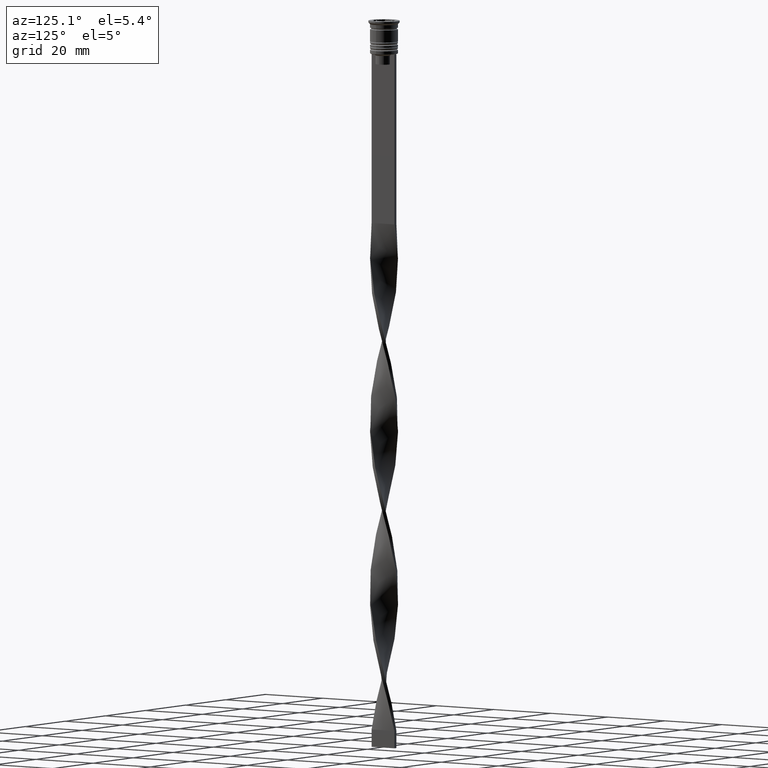
[diagram: clean part render]
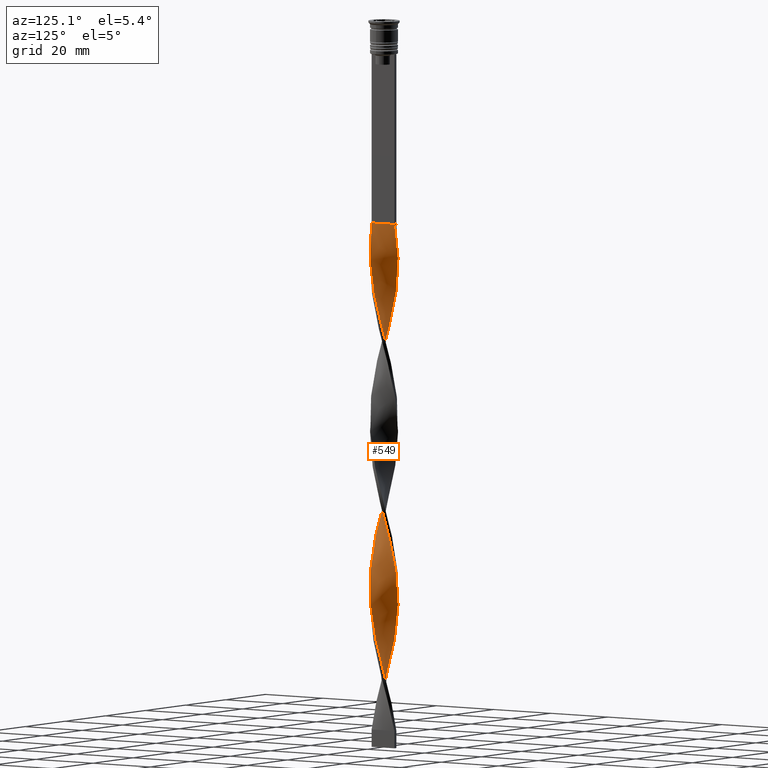
[diagram: same view with one face highlighted and labeled with its STEP entity id]
A machine part, auxiliary view. The second image highlights one B-rep face of the part: STEP entity #549.
In plain terms, the highlighted face is a freeform B-spline surface patch.
Its self-contained STEP definition (entity closure, byte-faithful):
#7 = CARTESIAN_POINT ( 'NONE',  ( -2.821583537095226468, 2.903135856687523830, -117.1862745098039369 ) ) ;
#14 = CARTESIAN_POINT ( 'NONE',  ( -3.856468655234277065, -1.231739002543614125, -134.3627450980391984 ) ) ;
#30 = CARTESIAN_POINT ( 'NONE',  ( -4.029070884911789996, -0.1287936502943096417, -130.0686274509803866 ) ) ;
#35 = CARTESIAN_POINT ( 'NONE',  ( -1.680620083644616125, 3.664084624357134778, -67.08823529411763786 ) ) ;
#48 = CARTESIAN_POINT ( 'NONE',  ( 3.927262761293754956, -0.9829235285346253903, -174.4411764705882320 ) ) ;
#62 = CARTESIAN_POINT ( 'NONE',  ( 0.8706545849681190941, -3.953668176878984752, -157.2647058823529278 ) ) ;
#84 = CARTESIAN_POINT ( 'NONE',  ( 4.041005374160881125, 0.2445547488692193516, -134.3627450980391984 ) ) ;
#87 = CARTESIAN_POINT ( 'NONE',  ( 2.020147525076906536, 3.508352239459040067, -194.4803921568627914 ) ) ;
#104 = CARTESIAN_POINT ( 'NONE',  ( -1.582314657248345968, -3.726367102775659301, -102.8725490196078312 ) ) ;
#111 = CARTESIAN_POINT ( 'NONE',  ( -1.911202779450789535, -3.549268084523846678, -101.4411764705882320 ) ) ;
#127 = CARTESIAN_POINT ( 'NONE',  ( 3.803522343308518572, 1.335371777428622897, -138.6568627450980387 ) ) ;
#128 =( BOUNDED_CURVE ( )  B_SPLINE_CURVE ( 2, ( #2947, #3836, #1049, #789, #3466, #3811, #3531, #191, #2967, #2559, #3776, #1692, #2027, #1735, #745, #450, #1960, #2275, #2321, #1085, #1669, #2005, #1408, #3177, #2882, #1371, #169, #3485, #3857, #2901, #216, #763, #1436, #1387, #2619, #2640, #1755, #2302, #3512, #3217, #496, #2341, #3550, #826, #1712, #2047, #2923, #3262, #543, #1147, #278, #1496, #2683, #14, #3896, #1213, #1470, #3633, #2704, #1820, #3914, #3283, #635, #3009, #2068, #1176, #2388, #2363, #3932, #1193, #3044, #2662, #1836, #3595, #2425, #870, #930, #579, #912, #1240, #2129, #1774, #312, #3339, #561, #1793, #1534, #3576, #2407, #295, #620, #3613, #2987, #1850, #887, #253, #2087, #3301, #851, #2737, #2106, #2451, #3321 ),
 .UNSPECIFIED., .F., .T. ) 
 B_SPLINE_CURVE_WITH_KNOTS ( ( 3, 2, 2, 2, 2, 2, 2, 2, 2, 2, 2, 2, 2, 2, 2, 2, 2, 2, 2, 2, 2, 2, 2, 2, 2, 2, 2, 2, 2, 2, 2, 2, 2, 2, 2, 2, 2, 2, 2, 2, 2, 2, 2, 2, 2, 2, 2, 2, 2, 2, 2, 3 ),
 ( 0.000000000000000000, 0.01470588235294117453, 0.02941176470588234906, 0.04411764705882353227, 0.05882352941176469813, 0.07352941176470588480, 0.08823529411764706454, 0.1029411764705882443, 0.1176470588235293963, 0.1323529411764705899, 0.1470588235294117696, 0.1617647058823529493, 0.1764705882352941291, 0.1911764705882352811, 0.2058823529411764885, 0.2205882352941176405, 0.2352941176470587925, 0.2500000000000000000, 0.2647058823529411797, 0.2794117647058823595, 0.2941176470588235392, 0.3088235294117647189, 0.3235294117647058987, 0.3382352941176470229, 0.3529411764705882582, 0.3676470588235294379, 0.3823529411764705621, 0.3970588235294117418, 0.4117647058823529771, 0.4264705882352941013, 0.4411764705882352811, 0.4558823529411764608, 0.4705882352941175850, 0.4852941176470588203, 0.5000000000000000000, 0.5147058823529411242, 0.5294117647058823595, 0.5441176470588234837, 0.5588235294117647189, 0.5735294117647058432, 0.5882352941176470784, 0.6029411764705882026, 0.6176470588235294379, 0.6323529411764705621, 0.6470588235294117974, 0.6617647058823529216, 0.6764705882352940458, 0.6911764705882351700, 0.7058823529411765163, 0.7205882352941176405, 0.7352941176470588758, 0.7500000000000000000 ),
 .UNSPECIFIED. ) 
 CURVE ( )  GEOMETRIC_REPRESENTATION_ITEM ( )  RATIONAL_B_SPLINE_CURVE ( ( 1.000000000000000000, 0.9957341762950344677, 1.000000000000000000, 0.9957341762950344677, 1.000000000000000000, 0.9957341762950344677, 1.000000000000000000, 0.9957341762950344677, 1.000000000000000000, 0.9957341762950344677, 1.000000000000000000, 0.9957341762950344677, 1.000000000000000000, 0.9957341762950344677, 1.000000000000000000, 0.9957341762950344677, 1.000000000000000000, 0.9957341762950344677, 1.000000000000000000, 0.9957341762950344677, 1.000000000000000000, 0.9957341762950344677, 1.000000000000000000, 0.9957341762950344677, 1.000000000000000000, 0.9957341762950344677, 1.000000000000000000, 0.9957341762950344677, 1.000000000000000000, 0.9957341762950344677, 1.000000000000000000, 0.9957341762950344677, 1.000000000000000000, 0.9957341762950344677, 1.000000000000000000, 0.9957341762950344677, 1.000000000000000000, 0.9957341762950344677, 1.000000000000000000, 0.9957341762950344677, 1.000000000000000000, 0.9957341762950344677, 1.000000000000000000, 0.9957341762950344677, 1.000000000000000000, 0.9957341762950344677, 1.000000000000000000, 0.9957341762950344677, 1.000000000000000000, 0.9957341762950344677, 1.000000000000000000, 0.9957341762950344677, 1.000000000000000000, 0.9957341762950344677, 1.000000000000000000, 0.9957341762950344677, 1.000000000000000000, 0.9957341762950344677, 1.000000000000000000, 0.9957341762950344677, 1.000000000000000000, 0.9957341762950344677, 1.000000000000000000, 0.9957341762950344677, 1.000000000000000000, 0.9957341762950344677, 1.000000000000000000, 0.9957341762950344677, 1.000000000000000000, 0.9957341762950344677, 1.000000000000000000, 0.9957341762950344677, 1.000000000000000000, 0.9957341762950344677, 1.000000000000000000, 0.9957341762950344677, 1.000000000000000000, 0.9957341762950344677, 1.000000000000000000, 0.9957341762950344677, 1.000000000000000000, 0.9957341762950344677, 1.000000000000000000, 0.9957341762950344677, 1.000000000000000000, 0.9957341762950344677, 1.000000000000000000, 0.9957341762950344677, 1.000000000000000000, 0.9957341762950344677, 1.000000000000000000, 0.9957341762950344677, 1.000000000000000000, 0.9957341762950344677, 1.000000000000000000, 0.9957341762950344677, 1.000000000000000000, 0.9957341762950344677, 1.000000000000000000, 0.9957341762950344677, 1.000000000000000000, 0.9957341762950344677, 1.000000000000000000 ) ) 
 REPRESENTATION_ITEM ( '' )  );
#132 = ORIENTED_EDGE ( 'NONE', *, *, #907, .T. ) ;
#142 = CARTESIAN_POINT ( 'NONE',  ( -1.341092642212326380, 3.819817009255230822, -65.65686274509803866 ) ) ;
#148 = ORIENTED_EDGE ( 'NONE', *, *, #322, .F. ) ;
#150 = CARTESIAN_POINT ( 'NONE',  ( 0.5000000000000000000, 4.000000000000000000, -155.8333333333333144 ) ) ;
#159 = CARTESIAN_POINT ( 'NONE',  ( -0.2435115214243304405, 4.023767157643892034, -61.36274509803921262 ) ) ;
#164 = CARTESIAN_POINT ( 'NONE',  ( 3.493386227310586900, 2.011529931876904875, -141.5196078431372371 ) ) ;
#169 = CARTESIAN_POINT ( 'NONE',  ( 2.325278115975899951, 3.292883490705914795, -95.71568627450979250 ) ) ;
#179 = CARTESIAN_POINT ( 'NONE',  ( -3.306990529297890724, -2.335239837431193788, -191.6176470588235077 ) ) ;
#186 = CARTESIAN_POINT ( 'NONE',  ( 0.1293454150318809337, 4.046331823121015248, -157.2647058823529278 ) ) ;
#191 = CARTESIAN_POINT ( 'NONE',  ( 2.821583537095227356, -2.903135856687522942, -68.51960784313725128 ) ) ;
#199 = CARTESIAN_POINT ( 'NONE',  ( -3.936802525448486634, 0.8669405260007252423, -178.7352941176470438 ) ) ;
#212 = CARTESIAN_POINT ( 'NONE',  ( 0.6163684578805426195, 4.001202492166771485, -102.8725490196078312 ) ) ;
#216 = CARTESIAN_POINT ( 'NONE',  ( 0.9787305500464337227, 3.910509750710999821, -101.4411764705882320 ) ) ;
#226 = CARTESIAN_POINT ( 'NONE',  ( 1.911202779450789979, 3.549268084523846678, -150.1078431372548891 ) ) ;
#232 = CARTESIAN_POINT ( 'NONE',  ( 3.936802525448487522, 0.8669405260007247982, -84.26470588235294201 ) ) ;
#240 = CARTESIAN_POINT ( 'NONE',  ( -3.564473500076193790, 1.919390561205869261, -174.4411764705882320 ) ) ;
#248 = CARTESIAN_POINT ( 'NONE',  ( 3.803522343308519016, -1.335371777428622009, -75.67647058823528994 ) ) ;
#253 = CARTESIAN_POINT ( 'NONE',  ( 2.020147525076906980, 3.508352239459040067, -194.4803921568627629 ) ) ;
#267 = CARTESIAN_POINT ( 'NONE',  ( 3.564473500076194235, 1.919390561205868817, -88.55882352941175384 ) ) ;
#278 = CARTESIAN_POINT ( 'NONE',  ( -4.029070884911789996, -0.1287936502943096417, -130.0686274509803866 ) ) ;
#290 = CARTESIAN_POINT ( 'NONE',  ( -0.4999999999999994449, 4.000000000000000000, -107.1666666666666572 ) ) ;
#295 = CARTESIAN_POINT ( 'NONE',  ( 3.564473500076193790, 1.919390561205868817, -185.8921568627451109 ) ) ;
#308 = CARTESIAN_POINT ( 'NONE',  ( 1.582314657248345080, -3.726367102775659745, -160.1274509803922115 ) ) ;
#312 = CARTESIAN_POINT ( 'NONE',  ( 3.984134067727318040, -0.6137391387019215383, -175.8725490196078454 ) ) ;
#322 = EDGE_CURVE ( 'NONE', #595, #3793, #2969, .T. ) ;
#327 = CARTESIAN_POINT ( 'NONE',  ( 2.630408706874893365, 3.077414741952792188, -191.6176470588235077 ) ) ;
#329 = VECTOR ( 'NONE', #2429, 1000.000000000000000 ) ;
#352 = CARTESIAN_POINT ( 'NONE',  ( 4.017136395662697979, 0.5021420494578370253, -180.1666666666666288 ) ) ;
#366 = CARTESIAN_POINT ( 'NONE',  ( -0.6163684578805430636, -4.001202492166771485, -151.5392156862744741 ) ) ;
#369 = CARTESIAN_POINT ( 'NONE',  ( -1.341092642212326380, 3.819817009255230822, -65.65686274509803866 ) ) ;
#380 = CARTESIAN_POINT ( 'NONE',  ( -3.856468655234276621, -1.231739002543614125, -134.3627450980391984 ) ) ;
#403 = CARTESIAN_POINT ( 'NONE',  ( -2.325278115975899507, 3.292883490705915239, -69.95098039215686470 ) ) ;
#406 = CARTESIAN_POINT ( 'NONE',  ( 0.5000000000000000000, -4.000000000000000000, -58.50000000000000000 ) ) ;
#410 = CARTESIAN_POINT ( 'NONE',  ( -3.856468655234276621, 1.231739002543613237, -79.97058823529411598 ) ) ;
#422 = CARTESIAN_POINT ( 'NONE',  ( 0.9787305500464342778, -3.910509750710998933, -112.8921568627450966 ) ) ;
#428 = CARTESIAN_POINT ( 'NONE',  ( 2.020147525076905648, -3.508352239459040067, -117.1862745098039369 ) ) ;
#437 = CARTESIAN_POINT ( 'NONE',  ( 3.357783987531981040, -2.230535068783683350, -124.3431372549019471 ) ) ;
#445 = CARTESIAN_POINT ( 'NONE',  ( -2.325278115975899507, 3.292883490705915239, -167.2843137254901933 ) ) ;
#450 = CARTESIAN_POINT ( 'NONE',  ( 4.041005374160881125, -0.2445547488692184912, -79.97058823529411598 ) ) ;
#461 = CARTESIAN_POINT ( 'NONE',  ( -3.064287033196559040, -2.619187847059357477, -95.71568627450979250 ) ) ;
#471 = CARTESIAN_POINT ( 'NONE',  ( -3.984134067727318040, -0.6137391387019219824, -87.12745098039215463 ) ) ;
#489 = CARTESIAN_POINT ( 'NONE',  ( -0.5000000000000005551, -4.000000000000000000, -107.1666666666666572 ) ) ;
#496 = CARTESIAN_POINT ( 'NONE',  ( -2.530837219374230784, 3.137652461479778498, -115.7549019607843093 ) ) ;
#501 = CARTESIAN_POINT ( 'NONE',  ( 1.582314657248346412, 3.726367102775658413, -151.5392156862744741 ) ) ;
#510 = CARTESIAN_POINT ( 'NONE',  ( -3.936802525448486634, 0.8669405260007252423, -81.40196078431371518 ) ) ;
#528 = CARTESIAN_POINT ( 'NONE',  ( -3.064287033196559040, -2.619187847059357477, -193.0490196078431211 ) ) ;
#539 = CARTESIAN_POINT ( 'NONE',  ( -3.679781925323283076, -1.687820026322619738, -188.7549019607843093 ) ) ;
#543 = CARTESIAN_POINT ( 'NONE',  ( -3.984134067727318040, 0.6137391387019228706, -127.2058823529411740 ) ) ;
#549 = ADVANCED_FACE ( 'NONE', ( #1311 ), #923, .T. ) ;
#551 = CARTESIAN_POINT ( 'NONE',  ( -3.151094474987766958, 2.541679576361500104, -171.5784313725490620 ) ) ;
#558 = CARTESIAN_POINT ( 'NONE',  ( -1.226484621108232531, -3.840017639827321805, -201.6372549019607732 ) ) ;
#561 = CARTESIAN_POINT ( 'NONE',  ( 4.029070884911789108, 0.1287936502943091699, -178.7352941176470438 ) ) ;
#567 = CARTESIAN_POINT ( 'NONE',  ( 0.8706545849681190941, 3.953668176878986085, -154.4019607843137294 ) ) ;
#576 = CARTESIAN_POINT ( 'NONE',  ( -3.803522343308519016, -1.335371777428621565, -187.3235294117646959 ) ) ;
#579 = CARTESIAN_POINT ( 'NONE',  ( 3.306990529297890724, -2.335239837431193788, -168.7156862745097783 ) ) ;
#585 = CARTESIAN_POINT ( 'NONE',  ( -2.530837219374230340, -3.137652461479778943, -195.9117647058823479 ) ) ;
#593 = CARTESIAN_POINT ( 'NONE',  ( 2.325278115975899951, 3.292883490705914795, -95.71568627450979250 ) ) ;
#595 = VERTEX_POINT ( 'NONE', #406 ) ;
#597 = ORIENTED_EDGE ( 'NONE', *, *, #1550, .F. ) ;
#613 = CARTESIAN_POINT ( 'NONE',  ( -3.936802525448486634, 0.8669405260007252423, -178.7352941176470438 ) ) ;
#618 = B_SPLINE_CURVE_WITH_KNOTS ( 'NONE', 3,
 ( #3400, #3662, #954, #1522 ),
 .UNSPECIFIED., .F., .F.,
 ( 4, 4 ),
 ( 0.000000000000000000, 1.000000000000000000 ),
 .UNSPECIFIED. ) ;
#620 = CARTESIAN_POINT ( 'NONE',  ( 3.357783987531980152, 2.230535068783684238, -187.3235294117646959 ) ) ;
#632 = CARTESIAN_POINT ( 'NONE',  ( -2.890751590931330828, -2.809547159157144591, -141.5196078431372371 ) ) ;
#635 = CARTESIAN_POINT ( 'NONE',  ( -1.680620083644617901, -3.664084624357133446, -147.2450980392156907 ) ) ;
#650 = CARTESIAN_POINT ( 'NONE',  ( 0.2435115214243305515, 4.023767157643892034, -201.6372549019607732 ) ) ;
#674 = CARTESIAN_POINT ( 'NONE',  ( 3.710471077655235206, 1.575564781874741138, -184.4607843137254690 ) ) ;
#687 = CARTESIAN_POINT ( 'NONE',  ( 0.5000000000000000000, -4.000000000000000000, -155.8333333333333144 ) ) ;
#692 = CARTESIAN_POINT ( 'NONE',  ( 0.1293454150318809337, 4.046331823121015248, -59.93137254901961342 ) ) ;
#698 = CARTESIAN_POINT ( 'NONE',  ( -3.710471077655235206, 1.575564781874740694, -78.53921568627450256 ) ) ;
#727 = CARTESIAN_POINT ( 'NONE',  ( 2.325278115975899507, -3.292883490705915239, -118.6176470588235219 ) ) ;
#737 = CARTESIAN_POINT ( 'NONE',  ( 1.341092642212325936, -3.819817009255230822, -114.3235294117646959 ) ) ;
#742 = CARTESIAN_POINT ( 'NONE',  ( -1.226484621108232531, -3.840017639827321805, -104.3039215686274446 ) ) ;
#745 = CARTESIAN_POINT ( 'NONE',  ( 3.984134067727318040, -0.6137391387019215383, -78.53921568627450256 ) ) ;
#752 = CARTESIAN_POINT ( 'NONE',  ( -0.8706545849681186500, -3.953668176878986085, -105.7352941176470722 ) ) ;
#758 = CARTESIAN_POINT ( 'NONE',  ( 3.936802525448487522, -0.8669405260007250202, -130.0686274509803866 ) ) ;
#763 = CARTESIAN_POINT ( 'NONE',  ( 0.6163684578805426195, 4.001202492166770597, -102.8725490196078312 ) ) ;
#774 = CARTESIAN_POINT ( 'NONE',  ( 3.936802525448487522, -0.8669405260007250202, -130.0686274509803866 ) ) ;
#785 = CARTESIAN_POINT ( 'NONE',  ( 2.240090901653234656, 3.372169066272035831, -148.6764705882353326 ) ) ;
#789 = CARTESIAN_POINT ( 'NONE',  ( 1.582314657248345080, -3.726367102775659301, -62.79411764705881893 ) ) ;
#803 = CARTESIAN_POINT ( 'NONE',  ( -2.890751590931329940, 2.809547159157145479, -170.1470588235293917 ) ) ;
#813 = CARTESIAN_POINT ( 'NONE',  ( 2.530837219374231672, 3.137652461479777610, -147.2450980392156907 ) ) ;
#821 = CARTESIAN_POINT ( 'NONE',  ( -0.5000000000000005551, -4.000000000000000000, -204.5000000000000000 ) ) ;
#826 = CARTESIAN_POINT ( 'NONE',  ( -3.306990529297891168, 2.335239837431193344, -120.0490196078431353 ) ) ;
#836 = CARTESIAN_POINT ( 'NONE',  ( -2.630408706874892921, 3.077414741952791744, -168.7156862745097783 ) ) ;
#847 = CARTESIAN_POINT ( 'NONE',  ( -2.240090901653234656, 3.372169066272035387, -114.3235294117646959 ) ) ;
#851 = CARTESIAN_POINT ( 'NONE',  ( 0.9787305500464337227, 3.910509750710999821, -198.7745098039215463 ) ) ;
#860 = CARTESIAN_POINT ( 'NONE',  ( -1.680620083644616125, 3.664084624357134778, -164.4215686274509665 ) ) ;
#867 = CARTESIAN_POINT ( 'NONE',  ( 0.8706545849681190941, -3.953668176878984752, -59.93137254901961342 ) ) ;
#870 = CARTESIAN_POINT ( 'NONE',  ( 2.821583537095227356, -2.903135856687522942, -165.8529411764705799 ) ) ;
#875 = CARTESIAN_POINT ( 'NONE',  ( 2.240090901653234212, 3.372169066272035831, -148.6764705882353326 ) ) ;
#883 = CARTESIAN_POINT ( 'NONE',  ( 1.341092642212326824, 3.819817009255229934, -100.0098039215686327 ) ) ;
#887 = CARTESIAN_POINT ( 'NONE',  ( 2.325278115975899951, 3.292883490705914795, -193.0490196078431211 ) ) ;
#904 = CARTESIAN_POINT ( 'NONE',  ( -1.911202779450789535, -3.549268084523846678, -198.7745098039215463 ) ) ;
#907 = EDGE_CURVE ( 'NONE', #595, #1514, #128, .T. ) ;
#912 = CARTESIAN_POINT ( 'NONE',  ( 3.493386227310586012, -2.011529931876905763, -170.1470588235293917 ) ) ;
#923 =( BOUNDED_SURFACE ( )  B_SPLINE_SURFACE ( 1, 2, ( 
 ( #2521, #692, #1257, #2762, #3138, #369, #35, #1292, #1005, #2467, #3114, #3709, #1605, #2219, #1923, #410, #510, #1366, #1976, #3462, #471, #1707, #2590, #3748, #3480, #1021, #2573, #2292, #2895, #1729, #111, #2536, #742, #3508, #489, #2236, #3155, #1326, #1045, #3807, #3790, #428, #727, #1686, #1642, #1060, #3527, #2854, #3174, #3448, #758, #2022, #2271, #1661, #1104, #1939, #127, #1342, #164, #1384, #2879, #3197, #1957, #785, #1081, #2611, #2554, #2319, #150, #186, #2000, #3771, #3214, #2916, #2252, #3833, #445, #1403, #803, #3231, #1189, #3314, #2636, #2040, #613, #3871, #2700, #2675, #3254, #3545, #576, #539, #3889, #2423, #1752, #2064, #2337, #2383, #904, #1170, #558, #3929, #821 ),
 ( #1769, #867, #2355, #3609, #1789, #1509, #3852, #1210, #2982, #3026, #3001, #1124, #248, #1466, #1451, #2716, #2656, #3909, #232, #2402, #3592, #267, #2084, #1143, #3280, #3296, #593, #1491, #3568, #883, #2939, #212, #1815, #2102, #290, #3629, #2125, #2964, #3336, #847, #1432, #7, #2198, #3095, #3351, #1896, #1582, #2733, #982, #2497, #30, #943, #3110, #380, #1231, #2479, #2447, #3390, #632, #3725, #3683, #1530, #2214, #3705, #3040, #366, #1000, #2758, #687, #62, #1848, #308, #3423, #3082, #3056, #2463, #3407, #2141, #1285, #3667, #962, #48, #3649, #1599, #1832, #352, #2180, #1253, #674, #2813, #2790, #926, #1270, #327, #1567, #87, #1883, #1551, #2159, #3367, #650, #2774, #1307 ) ),
 .UNSPECIFIED., .F., .F., .T. ) 
 B_SPLINE_SURFACE_WITH_KNOTS ( ( 2, 2 ),
 ( 3, 2, 2, 2, 2, 2, 2, 2, 2, 2, 2, 2, 2, 2, 2, 2, 2, 2, 2, 2, 2, 2, 2, 2, 2, 2, 2, 2, 2, 2, 2, 2, 2, 2, 2, 2, 2, 2, 2, 2, 2, 2, 2, 2, 2, 2, 2, 2, 2, 2, 2, 3 ),
 ( 0.000000000000000000, 1.000000000000000000 ),
 ( 0.000000000000000000, 0.01470588235294117627, 0.02941176470588235253, 0.04411764705882353227, 0.05882352941176470507, 0.07352941176470588480, 0.08823529411764706454, 0.1029411764705882304, 0.1176470588235294101, 0.1323529411764705899, 0.1470588235294117696, 0.1617647058823529493, 0.1764705882352941291, 0.1911764705882352811, 0.2058823529411764608, 0.2205882352941176405, 0.2352941176470588203, 0.2500000000000000000, 0.2647058823529411797, 0.2794117647058823595, 0.2941176470588235392, 0.3088235294117647189, 0.3235294117647058987, 0.3382352941176470784, 0.3529411764705882582, 0.3676470588235294379, 0.3823529411764705621, 0.3970588235294117418, 0.4117647058823529216, 0.4264705882352941013, 0.4411764705882352811, 0.4558823529411764608, 0.4705882352941176405, 0.4852941176470588203, 0.5000000000000000000, 0.5147058823529411242, 0.5294117647058823595, 0.5441176470588234837, 0.5588235294117647189, 0.5735294117647058432, 0.5882352941176470784, 0.6029411764705882026, 0.6176470588235294379, 0.6323529411764705621, 0.6470588235294117974, 0.6617647058823529216, 0.6764705882352941568, 0.6911764705882352811, 0.7058823529411765163, 0.7205882352941176405, 0.7352941176470588758, 0.7500000000000000000 ),
 .UNSPECIFIED. ) 
 GEOMETRIC_REPRESENTATION_ITEM ( )  RATIONAL_B_SPLINE_SURFACE ( (
 ( 1.000000000000000000, 0.9957341762950344677, 1.000000000000000000, 0.9957341762950344677, 1.000000000000000000, 0.9957341762950344677, 1.000000000000000000, 0.9957341762950344677, 1.000000000000000000, 0.9957341762950344677, 1.000000000000000000, 0.9957341762950344677, 1.000000000000000000, 0.9957341762950344677, 1.000000000000000000, 0.9957341762950344677, 1.000000000000000000, 0.9957341762950344677, 1.000000000000000000, 0.9957341762950344677, 1.000000000000000000, 0.9957341762950344677, 1.000000000000000000, 0.9957341762950344677, 1.000000000000000000, 0.9957341762950344677, 1.000000000000000000, 0.9957341762950344677, 1.000000000000000000, 0.9957341762950344677, 1.000000000000000000, 0.9957341762950344677, 1.000000000000000000, 0.9957341762950344677, 1.000000000000000000, 0.9957341762950344677, 1.000000000000000000, 0.9957341762950344677, 1.000000000000000000, 0.9957341762950344677, 1.000000000000000000, 0.9957341762950344677, 1.000000000000000000, 0.9957341762950344677, 1.000000000000000000, 0.9957341762950344677, 1.000000000000000000, 0.9957341762950344677, 1.000000000000000000, 0.9957341762950344677, 1.000000000000000000, 0.9957341762950344677, 1.000000000000000000, 0.9957341762950344677, 1.000000000000000000, 0.9957341762950344677, 1.000000000000000000, 0.9957341762950344677, 1.000000000000000000, 0.9957341762950344677, 1.000000000000000000, 0.9957341762950344677, 1.000000000000000000, 0.9957341762950344677, 1.000000000000000000, 0.9957341762950344677, 1.000000000000000000, 0.9957341762950344677, 1.000000000000000000, 0.9957341762950344677, 1.000000000000000000, 0.9957341762950344677, 1.000000000000000000, 0.9957341762950344677, 1.000000000000000000, 0.9957341762950344677, 1.000000000000000000, 0.9957341762950344677, 1.000000000000000000, 0.9957341762950344677, 1.000000000000000000, 0.9957341762950344677, 1.000000000000000000, 0.9957341762950344677, 1.000000000000000000, 0.9957341762950344677, 1.000000000000000000, 0.9957341762950344677, 1.000000000000000000, 0.9957341762950344677, 1.000000000000000000, 0.9957341762950344677, 1.000000000000000000, 0.9957341762950344677, 1.000000000000000000, 0.9957341762950344677, 1.000000000000000000, 0.9957341762950344677, 1.000000000000000000, 0.9957341762950344677, 1.000000000000000000, 0.9957341762950344677, 1.000000000000000000),
 ( 1.000000000000000000, 0.9957341762950344677, 1.000000000000000000, 0.9957341762950344677, 1.000000000000000000, 0.9957341762950344677, 1.000000000000000000, 0.9957341762950344677, 1.000000000000000000, 0.9957341762950344677, 1.000000000000000000, 0.9957341762950344677, 1.000000000000000000, 0.9957341762950344677, 1.000000000000000000, 0.9957341762950344677, 1.000000000000000000, 0.9957341762950344677, 1.000000000000000000, 0.9957341762950344677, 1.000000000000000000, 0.9957341762950344677, 1.000000000000000000, 0.9957341762950344677, 1.000000000000000000, 0.9957341762950344677, 1.000000000000000000, 0.9957341762950344677, 1.000000000000000000, 0.9957341762950344677, 1.000000000000000000, 0.9957341762950344677, 1.000000000000000000, 0.9957341762950344677, 1.000000000000000000, 0.9957341762950344677, 1.000000000000000000, 0.9957341762950344677, 1.000000000000000000, 0.9957341762950344677, 1.000000000000000000, 0.9957341762950344677, 1.000000000000000000, 0.9957341762950344677, 1.000000000000000000, 0.9957341762950344677, 1.000000000000000000, 0.9957341762950344677, 1.000000000000000000, 0.9957341762950344677, 1.000000000000000000, 0.9957341762950344677, 1.000000000000000000, 0.9957341762950344677, 1.000000000000000000, 0.9957341762950344677, 1.000000000000000000, 0.9957341762950344677, 1.000000000000000000, 0.9957341762950344677, 1.000000000000000000, 0.9957341762950344677, 1.000000000000000000, 0.9957341762950344677, 1.000000000000000000, 0.9957341762950344677, 1.000000000000000000, 0.9957341762950344677, 1.000000000000000000, 0.9957341762950344677, 1.000000000000000000, 0.9957341762950344677, 1.000000000000000000, 0.9957341762950344677, 1.000000000000000000, 0.9957341762950344677, 1.000000000000000000, 0.9957341762950344677, 1.000000000000000000, 0.9957341762950344677, 1.000000000000000000, 0.9957341762950344677, 1.000000000000000000, 0.9957341762950344677, 1.000000000000000000, 0.9957341762950344677, 1.000000000000000000, 0.9957341762950344677, 1.000000000000000000, 0.9957341762950344677, 1.000000000000000000, 0.9957341762950344677, 1.000000000000000000, 0.9957341762950344677, 1.000000000000000000, 0.9957341762950344677, 1.000000000000000000, 0.9957341762950344677, 1.000000000000000000, 0.9957341762950344677, 1.000000000000000000, 0.9957341762950344677, 1.000000000000000000) ) ) 
 REPRESENTATION_ITEM ( '' )  SURFACE ( )  );
#926 = CARTESIAN_POINT ( 'NONE',  ( 3.151094474987767402, 2.541679576361500548, -188.7549019607843093 ) ) ;
#930 = CARTESIAN_POINT ( 'NONE',  ( 3.064287033196558596, -2.619187847059357921, -167.2843137254901933 ) ) ;
#933 = CARTESIAN_POINT ( 'NONE',  ( 0.5000000000000000000, 4.000000000000000000, -58.50000000000000000 ) ) ;
#943 = CARTESIAN_POINT ( 'NONE',  ( -4.017136395662697979, -0.5021420494578364702, -131.5000000000000000 ) ) ;
#954 = CARTESIAN_POINT ( 'NONE',  ( -0.4999999999999997780, 1.333333333333333481, -204.5000000000000000 ) ) ;
#962 = CARTESIAN_POINT ( 'NONE',  ( 3.803522343308519016, -1.335371777428622009, -173.0098039215686185 ) ) ;
#982 = CARTESIAN_POINT ( 'NONE',  ( -3.984134067727318040, 0.6137391387019228706, -127.2058823529411740 ) ) ;
#1000 = CARTESIAN_POINT ( 'NONE',  ( -0.2435115214243293580, -4.023767157643892034, -152.9705882352941160 ) ) ;
#1005 = CARTESIAN_POINT ( 'NONE',  ( -2.325278115975899507, 3.292883490705915239, -69.95098039215686470 ) ) ;
#1012 = CARTESIAN_POINT ( 'NONE',  ( -3.564473500076193790, 1.919390561205869261, -77.10784313725490335 ) ) ;
#1021 = CARTESIAN_POINT ( 'NONE',  ( -3.306990529297891168, -2.335239837431193788, -94.28431372549020750 ) ) ;
#1038 = CARTESIAN_POINT ( 'NONE',  ( 1.680620083644616569, -3.664084624357134334, -115.7549019607843093 ) ) ;
#1045 = CARTESIAN_POINT ( 'NONE',  ( 0.9787305500464342778, -3.910509750710998933, -112.8921568627450966 ) ) ;
#1049 = CARTESIAN_POINT ( 'NONE',  ( 1.226484621108232309, -3.840017639827321805, -61.36274509803921262 ) ) ;
#1054 = CARTESIAN_POINT ( 'NONE',  ( -3.856468655234277065, 1.231739002543613237, -79.97058823529411598 ) ) ;
#1060 = CARTESIAN_POINT ( 'NONE',  ( 3.151094474987766958, -2.541679576361500992, -122.9117647058823479 ) ) ;
#1076 = CARTESIAN_POINT ( 'NONE',  ( 0.2435115214243295800, -4.023767157643892034, -110.0294117647058698 ) ) ;
#1081 = CARTESIAN_POINT ( 'NONE',  ( 1.911202779450789979, 3.549268084523846678, -150.1078431372548891 ) ) ;
#1085 = CARTESIAN_POINT ( 'NONE',  ( 3.856468655234277065, 1.231739002543613681, -85.69607843137254122 ) ) ;
#1095 = CARTESIAN_POINT ( 'NONE',  ( -1.341092642212326380, 3.819817009255230822, -162.9901960784313530 ) ) ;
#1104 = CARTESIAN_POINT ( 'NONE',  ( 3.984134067727318040, 0.6137391387019215383, -135.7941176470588118 ) ) ;
#1116 = CARTESIAN_POINT ( 'NONE',  ( 3.803522343308518572, 1.335371777428622897, -138.6568627450980387 ) ) ;
#1124 = CARTESIAN_POINT ( 'NONE',  ( 3.679781925323283076, -1.687820026322619293, -74.24509803921567652 ) ) ;
#1134 = CARTESIAN_POINT ( 'NONE',  ( 3.984134067727318040, 0.6137391387019215383, -135.7941176470588118 ) ) ;
#1143 = CARTESIAN_POINT ( 'NONE',  ( 3.151094474987767402, 2.541679576361500548, -91.42156862745096646 ) ) ;
#1147 = CARTESIAN_POINT ( 'NONE',  ( -4.041005374160881125, 0.2445547488692170757, -128.6372549019607732 ) ) ;
#1158 = CARTESIAN_POINT ( 'NONE',  ( 3.927262761293755400, 0.9829235285346239470, -137.2254901960784537 ) ) ;
#1170 = CARTESIAN_POINT ( 'NONE',  ( -1.582314657248345968, -3.726367102775659745, -200.2058823529411598 ) ) ;
#1176 = CARTESIAN_POINT ( 'NONE',  ( -0.6163684578805429526, -4.001202492166770597, -151.5392156862744741 ) ) ;
#1182 = CARTESIAN_POINT ( 'NONE',  ( -3.493386227310586456, -2.011529931876905319, -190.1862745098039227 ) ) ;
#1189 = CARTESIAN_POINT ( 'NONE',  ( -3.357783987531980152, 2.230535068783684682, -173.0098039215686185 ) ) ;
#1193 = CARTESIAN_POINT ( 'NONE',  ( 0.8706545849681190941, -3.953668176878985197, -157.2647058823529278 ) ) ;
#1210 = CARTESIAN_POINT ( 'NONE',  ( 2.821583537095227356, -2.903135856687522942, -68.51960784313723707 ) ) ;
#1213 = CARTESIAN_POINT ( 'NONE',  ( -3.564473500076194679, -1.919390561205867707, -137.2254901960784537 ) ) ;
#1231 = CARTESIAN_POINT ( 'NONE',  ( -3.710471077655235206, -1.575564781874740694, -135.7941176470588118 ) ) ;
#1240 = CARTESIAN_POINT ( 'NONE',  ( 3.679781925323283076, -1.687820026322619293, -171.5784313725490620 ) ) ;
#1253 = CARTESIAN_POINT ( 'NONE',  ( 3.856468655234276621, 1.231739002543613681, -183.0294117647059124 ) ) ;
#1257 = CARTESIAN_POINT ( 'NONE',  ( -0.2435115214243304405, 4.023767157643892034, -61.36274509803921262 ) ) ;
#1270 = CARTESIAN_POINT ( 'NONE',  ( 2.890751590931330384, 2.809547159157145035, -190.1862745098039227 ) ) ;
#1285 = CARTESIAN_POINT ( 'NONE',  ( 3.493386227310586012, -2.011529931876905763, -170.1470588235293917 ) ) ;
#1292 = CARTESIAN_POINT ( 'NONE',  ( -2.020147525076906536, 3.508352239459040067, -68.51960784313723707 ) ) ;
#1304 = CARTESIAN_POINT ( 'NONE',  ( 2.020147525076906092, -3.508352239459040067, -117.1862745098039227 ) ) ;
#1307 = CARTESIAN_POINT ( 'NONE',  ( -0.4999999999999994449, 4.000000000000000000, -204.5000000000000000 ) ) ;
#1311 = FACE_OUTER_BOUND ( 'NONE', #2104, .T. ) ;
#1326 = CARTESIAN_POINT ( 'NONE',  ( 0.6163684578805417313, -4.001202492166771485, -111.4607843137254974 ) ) ;
#1342 = CARTESIAN_POINT ( 'NONE',  ( 3.679781925323283076, 1.687820026322619293, -140.0882352941176237 ) ) ;
#1358 = CARTESIAN_POINT ( 'NONE',  ( -2.821583537095227356, -2.903135856687522942, -97.14705882352940591 ) ) ;
#1366 = CARTESIAN_POINT ( 'NONE',  ( -4.017136395662697979, 0.5021420494578374694, -82.83333333333332860 ) ) ;
#1371 = CARTESIAN_POINT ( 'NONE',  ( 2.630408706874892921, 3.077414741952791744, -94.28431372549020750 ) ) ;
#1377 = CARTESIAN_POINT ( 'NONE',  ( -4.017136395662697979, 0.5021420494578374694, -82.83333333333332860 ) ) ;
#1384 = CARTESIAN_POINT ( 'NONE',  ( 3.306990529297890724, 2.335239837431195120, -142.9509803921568789 ) ) ;
#1387 = CARTESIAN_POINT ( 'NONE',  ( -0.1293454150318815721, 4.046331823121016136, -105.7352941176470722 ) ) ;
#1403 = CARTESIAN_POINT ( 'NONE',  ( -2.630408706874893365, 3.077414741952792188, -168.7156862745097783 ) ) ;
#1408 = CARTESIAN_POINT ( 'NONE',  ( 3.357783987531980152, 2.230535068783684238, -89.99019607843136725 ) ) ;
#1421 = EDGE_CURVE ( 'NONE', #3793, #2002, #3106, .T. ) ;
#1423 = CARTESIAN_POINT ( 'NONE',  ( -0.5000000000000005551, -4.000000000000000000, -204.5000000000000000 ) ) ;
#1432 = CARTESIAN_POINT ( 'NONE',  ( -2.530837219374230784, 3.137652461479778498, -115.7549019607843093 ) ) ;
#1436 = CARTESIAN_POINT ( 'NONE',  ( 0.2435115214243305515, 4.023767157643892034, -104.3039215686274446 ) ) ;
#1443 = CARTESIAN_POINT ( 'NONE',  ( -2.325278115975899507, 3.292883490705915239, -167.2843137254901933 ) ) ;
#1451 = CARTESIAN_POINT ( 'NONE',  ( 3.984134067727318040, -0.6137391387019215383, -78.53921568627450256 ) ) ;
#1459 = CARTESIAN_POINT ( 'NONE',  ( -4.017136395662697979, 0.5021420494578374694, -180.1666666666666288 ) ) ;
#1466 = CARTESIAN_POINT ( 'NONE',  ( 3.927262761293754956, -0.9829235285346253903, -77.10784313725490335 ) ) ;
#1470 = CARTESIAN_POINT ( 'NONE',  ( -3.357783987531979708, -2.230535068783685571, -138.6568627450980387 ) ) ;
#1491 = CARTESIAN_POINT ( 'NONE',  ( 2.020147525076906536, 3.508352239459040067, -97.14705882352939170 ) ) ;
#1496 = CARTESIAN_POINT ( 'NONE',  ( -4.017136395662697979, -0.5021420494578364702, -131.5000000000000000 ) ) ;
#1498 = CARTESIAN_POINT ( 'NONE',  ( 0.5000000000000000000, -4.000000000000000000, -58.50000000000000000 ) ) ;
#1509 = CARTESIAN_POINT ( 'NONE',  ( 2.240090901653235100, -3.372169066272035387, -65.65686274509803866 ) ) ;
#1514 = VERTEX_POINT ( 'NONE', #2785 ) ;
#1522 = CARTESIAN_POINT ( 'NONE',  ( -0.4999999999999994449, 4.000000000000000000, -204.5000000000000000 ) ) ;
#1530 = CARTESIAN_POINT ( 'NONE',  ( -2.020147525076906980, -3.508352239459039623, -145.8137254901960489 ) ) ;
#1534 = CARTESIAN_POINT ( 'NONE',  ( 3.936802525448487522, 0.8669405260007247982, -181.5980392156862706 ) ) ;
#1550 = EDGE_CURVE ( 'NONE', #2002, #1514, #618, .T. ) ;
#1551 = CARTESIAN_POINT ( 'NONE',  ( 1.341092642212326824, 3.819817009255229934, -197.3431372549019898 ) ) ;
#1567 = CARTESIAN_POINT ( 'NONE',  ( 2.325278115975899951, 3.292883490705914795, -193.0490196078431211 ) ) ;
#1582 = CARTESIAN_POINT ( 'NONE',  ( -3.803522343308519016, 1.335371777428620899, -124.3431372549019471 ) ) ;
#1599 = CARTESIAN_POINT ( 'NONE',  ( 4.041005374160881125, -0.2445547488692185190, -177.3039215686274304 ) ) ;
#1605 = CARTESIAN_POINT ( 'NONE',  ( -3.357783987531980152, 2.230535068783684682, -75.67647058823528994 ) ) ;
#1619 = CARTESIAN_POINT ( 'NONE',  ( -3.306990529297890724, -2.335239837431193788, -94.28431372549020750 ) ) ;
#1637 = CARTESIAN_POINT ( 'NONE',  ( 0.1293454150318809337, 4.046331823121015248, -59.93137254901961342 ) ) ;
#1642 = CARTESIAN_POINT ( 'NONE',  ( 2.890751590931329496, -2.809547159157145924, -121.4803921568627345 ) ) ;
#1652 = CARTESIAN_POINT ( 'NONE',  ( 3.564473500076193790, -1.919390561205869039, -125.7745098039216032 ) ) ;
#1661 = CARTESIAN_POINT ( 'NONE',  ( 4.041005374160881125, 0.2445547488692193794, -134.3627450980391984 ) ) ;
#1669 = CARTESIAN_POINT ( 'NONE',  ( 3.710471077655235206, 1.575564781874741138, -87.12745098039215463 ) ) ;
#1678 = CARTESIAN_POINT ( 'NONE',  ( -4.041005374160881125, -0.2445547488692189353, -85.69607843137254122 ) ) ;
#1686 = CARTESIAN_POINT ( 'NONE',  ( 2.630408706874893809, -3.077414741952791744, -120.0490196078431211 ) ) ;
#1692 = CARTESIAN_POINT ( 'NONE',  ( 3.679781925323283076, -1.687820026322619293, -74.24509803921567652 ) ) ;
#1700 = CARTESIAN_POINT ( 'NONE',  ( -2.630408706874892921, 3.077414741952791744, -71.38235294117646390 ) ) ;
#1707 = CARTESIAN_POINT ( 'NONE',  ( -3.927262761293754956, -0.9829235285346250572, -88.55882352941175384 ) ) ;
#1712 = CARTESIAN_POINT ( 'NONE',  ( -3.493386227310585568, 2.011529931876906208, -121.4803921568627345 ) ) ;
#1721 = CARTESIAN_POINT ( 'NONE',  ( 0.5000000000000000000, 4.000000000000000000, -155.8333333333333144 ) ) ;
#1729 = CARTESIAN_POINT ( 'NONE',  ( -2.240090901653235544, -3.372169066272034499, -100.0098039215686327 ) ) ;
#1735 = CARTESIAN_POINT ( 'NONE',  ( 3.927262761293755400, -0.9829235285346255013, -77.10784313725490335 ) ) ;
#1752 = CARTESIAN_POINT ( 'NONE',  ( -3.064287033196559040, -2.619187847059357477, -193.0490196078431211 ) ) ;
#1755 = CARTESIAN_POINT ( 'NONE',  ( -1.226484621108231421, 3.840017639827321805, -110.0294117647058698 ) ) ;
#1763 = CARTESIAN_POINT ( 'NONE',  ( -2.240090901653235100, -3.372169066272034499, -197.3431372549019613 ) ) ;
#1769 = CARTESIAN_POINT ( 'NONE',  ( 0.5000000000000000000, -4.000000000000000000, -58.50000000000000000 ) ) ;
#1774 = CARTESIAN_POINT ( 'NONE',  ( 3.927262761293755400, -0.9829235285346255013, -174.4411764705882320 ) ) ;
#1780 = CARTESIAN_POINT ( 'NONE',  ( -3.357783987531980152, 2.230535068783684682, -173.0098039215686185 ) ) ;
#1789 = CARTESIAN_POINT ( 'NONE',  ( 1.911202779450789535, -3.549268084523846678, -64.22549019607842524 ) ) ;
#1793 = CARTESIAN_POINT ( 'NONE',  ( 4.017136395662697979, 0.5021420494578370253, -180.1666666666666288 ) ) ;
#1815 = CARTESIAN_POINT ( 'NONE',  ( 0.2435115214243305515, 4.023767157643892034, -104.3039215686274446 ) ) ;
#1820 = CARTESIAN_POINT ( 'NONE',  ( -2.630408706874892033, -3.077414741952792188, -142.9509803921568789 ) ) ;
#1832 = CARTESIAN_POINT ( 'NONE',  ( 4.029070884911789108, 0.1287936502943091699, -178.7352941176470438 ) ) ;
#1836 = CARTESIAN_POINT ( 'NONE',  ( 1.911202779450789535, -3.549268084523846678, -161.5588235294117680 ) ) ;
#1848 = CARTESIAN_POINT ( 'NONE',  ( 1.226484621108232309, -3.840017639827321805, -158.6960784313725412 ) ) ;
#1850 = CARTESIAN_POINT ( 'NONE',  ( 2.630408706874892921, 3.077414741952791744, -191.6176470588235077 ) ) ;
#1883 = CARTESIAN_POINT ( 'NONE',  ( 1.680620083644616125, 3.664084624357134778, -195.9117647058823479 ) ) ;
#1896 = CARTESIAN_POINT ( 'NONE',  ( -3.679781925323282632, 1.687820026322619960, -122.9117647058823479 ) ) ;
#1910 = CARTESIAN_POINT ( 'NONE',  ( -3.151094474987766958, 2.541679576361500104, -74.24509803921567652 ) ) ;
#1923 = CARTESIAN_POINT ( 'NONE',  ( -3.710471077655235206, 1.575564781874740694, -78.53921568627450256 ) ) ;
#1933 = CARTESIAN_POINT ( 'NONE',  ( -3.679781925323283076, -1.687820026322619738, -91.42156862745098067 ) ) ;
#1939 = CARTESIAN_POINT ( 'NONE',  ( 3.927262761293754956, 0.9829235285346239470, -137.2254901960784821 ) ) ;
#1951 = CARTESIAN_POINT ( 'NONE',  ( 2.630408706874893365, -3.077414741952791299, -120.0490196078431353 ) ) ;
#1957 = CARTESIAN_POINT ( 'NONE',  ( 2.530837219374231672, 3.137652461479777610, -147.2450980392156907 ) ) ;
#1960 = CARTESIAN_POINT ( 'NONE',  ( 4.029070884911789108, 0.1287936502943091699, -81.40196078431371518 ) ) ;
#1968 = CARTESIAN_POINT ( 'NONE',  ( -1.680620083644616125, 3.664084624357134778, -67.08823529411763786 ) ) ;
#1976 = CARTESIAN_POINT ( 'NONE',  ( -4.029070884911789996, 0.1287936502943097528, -84.26470588235294201 ) ) ;
#1993 = CARTESIAN_POINT ( 'NONE',  ( 4.017136395662697979, -0.5021420494578380245, -131.5000000000000000 ) ) ;
#2000 = CARTESIAN_POINT ( 'NONE',  ( -0.2435115214243304405, 4.023767157643892034, -158.6960784313725412 ) ) ;
#2002 = VERTEX_POINT ( 'NONE', #2664 ) ;
#2005 = CARTESIAN_POINT ( 'NONE',  ( 3.564473500076193790, 1.919390561205868817, -88.55882352941175384 ) ) ;
#2012 = CARTESIAN_POINT ( 'NONE',  ( 3.493386227310586900, 2.011529931876904875, -141.5196078431372371 ) ) ;
#2022 = CARTESIAN_POINT ( 'NONE',  ( 4.017136395662697979, -0.5021420494578380245, -131.5000000000000000 ) ) ;
#2027 = CARTESIAN_POINT ( 'NONE',  ( 3.803522343308519016, -1.335371777428622009, -75.67647058823528994 ) ) ;
#2033 = CARTESIAN_POINT ( 'NONE',  ( -0.2435115214243304405, 4.023767157643892034, -158.6960784313725412 ) ) ;
#2040 = CARTESIAN_POINT ( 'NONE',  ( -3.856468655234276621, 1.231739002543613237, -177.3039215686274304 ) ) ;
#2047 = CARTESIAN_POINT ( 'NONE',  ( -3.679781925323282632, 1.687820026322620182, -122.9117647058823621 ) ) ;
#2057 = CARTESIAN_POINT ( 'NONE',  ( -4.029070884911789996, 0.1287936502943097528, -181.5980392156862706 ) ) ;
#2064 = CARTESIAN_POINT ( 'NONE',  ( -2.821583537095227356, -2.903135856687522942, -194.4803921568627914 ) ) ;
#2068 = CARTESIAN_POINT ( 'NONE',  ( -0.9787305500464340557, -3.910509750710999821, -150.1078431372548891 ) ) ;
#2076 = CARTESIAN_POINT ( 'NONE',  ( -3.984134067727318040, -0.6137391387019219824, -184.4607843137254690 ) ) ;
#2084 = CARTESIAN_POINT ( 'NONE',  ( 3.357783987531980152, 2.230535068783684238, -89.99019607843136725 ) ) ;
#2087 = CARTESIAN_POINT ( 'NONE',  ( 1.680620083644616125, 3.664084624357134778, -195.9117647058823479 ) ) ;
#2102 = CARTESIAN_POINT ( 'NONE',  ( -0.1293454150318815721, 4.046331823121016136, -105.7352941176470722 ) ) ;
#2104 = EDGE_LOOP ( 'NONE', ( #148, #132, #597, #2296 ) ) ;
#2106 = CARTESIAN_POINT ( 'NONE',  ( 0.2435115214243305515, 4.023767157643892034, -201.6372549019607732 ) ) ;
#2125 = CARTESIAN_POINT ( 'NONE',  ( -1.226484621108231421, 3.840017639827321805, -110.0294117647058698 ) ) ;
#2129 = CARTESIAN_POINT ( 'NONE',  ( 3.803522343308519016, -1.335371777428622009, -173.0098039215686185 ) ) ;
#2141 = CARTESIAN_POINT ( 'NONE',  ( 3.306990529297891168, -2.335239837431193788, -168.7156862745097783 ) ) ;
#2159 = CARTESIAN_POINT ( 'NONE',  ( 0.9787305500464337227, 3.910509750710999821, -198.7745098039215463 ) ) ;
#2180 = CARTESIAN_POINT ( 'NONE',  ( 3.936802525448487522, 0.8669405260007247982, -181.5980392156862706 ) ) ;
#2198 = CARTESIAN_POINT ( 'NONE',  ( -3.064287033196558596, 2.619187847059357921, -118.6176470588235219 ) ) ;
#2214 = CARTESIAN_POINT ( 'NONE',  ( -1.680620083644617901, -3.664084624357133446, -147.2450980392156907 ) ) ;
#2219 = CARTESIAN_POINT ( 'NONE',  ( -3.564473500076194235, 1.919390561205869261, -77.10784313725490335 ) ) ;
#2225 = CARTESIAN_POINT ( 'NONE',  ( -3.984134067727318040, -0.6137391387019219824, -87.12745098039215463 ) ) ;
#2236 = CARTESIAN_POINT ( 'NONE',  ( -0.1293454150318806006, -4.046331823121015248, -108.5980392156862706 ) ) ;
#2246 = CARTESIAN_POINT ( 'NONE',  ( -2.020147525076906980, 3.508352239459040067, -68.51960784313725128 ) ) ;
#2252 = CARTESIAN_POINT ( 'NONE',  ( -1.680620083644616125, 3.664084624357134778, -164.4215686274509665 ) ) ;
#2264 = CARTESIAN_POINT ( 'NONE',  ( -1.911202779450789535, -3.549268084523846678, -101.4411764705882320 ) ) ;
#2271 = CARTESIAN_POINT ( 'NONE',  ( 4.029070884911789996, -0.1287936502943111128, -132.9313725490196134 ) ) ;
#2275 = CARTESIAN_POINT ( 'NONE',  ( 4.017136395662697979, 0.5021420494578370253, -82.83333333333332860 ) ) ;
#2285 = CARTESIAN_POINT ( 'NONE',  ( 0.6163684578805417313, -4.001202492166770597, -111.4607843137254974 ) ) ;
#2292 = CARTESIAN_POINT ( 'NONE',  ( -2.821583537095227356, -2.903135856687522942, -97.14705882352939170 ) ) ;
#2296 = ORIENTED_EDGE ( 'NONE', *, *, #1421, .F. ) ;
#2302 = CARTESIAN_POINT ( 'NONE',  ( -1.582314657248345080, 3.726367102775659301, -111.4607843137254974 ) ) ;
#2311 = CARTESIAN_POINT ( 'NONE',  ( -3.710471077655235206, 1.575564781874740694, -175.8725490196078454 ) ) ;
#2319 = CARTESIAN_POINT ( 'NONE',  ( 0.8706545849681190941, 3.953668176878985641, -154.4019607843137294 ) ) ;
#2321 = CARTESIAN_POINT ( 'NONE',  ( 3.936802525448487522, 0.8669405260007247982, -84.26470588235294201 ) ) ;
#2329 = CARTESIAN_POINT ( 'NONE',  ( -2.890751590931329940, 2.809547159157145479, -170.1470588235293917 ) ) ;
#2337 = CARTESIAN_POINT ( 'NONE',  ( -2.530837219374230340, -3.137652461479778943, -195.9117647058823479 ) ) ;
#2341 = CARTESIAN_POINT ( 'NONE',  ( -2.821583537095226468, 2.903135856687523830, -117.1862745098039227 ) ) ;
#2347 = CARTESIAN_POINT ( 'NONE',  ( -0.9787305500464337227, 3.910509750710999821, -161.5588235294117680 ) ) ;
#2355 = CARTESIAN_POINT ( 'NONE',  ( 1.226484621108232309, -3.840017639827321805, -61.36274509803921262 ) ) ;
#2363 = CARTESIAN_POINT ( 'NONE',  ( 0.1293454150318811002, -4.046331823121016136, -154.4019607843137294 ) ) ;
#2374 = CARTESIAN_POINT ( 'NONE',  ( 2.821583537095227356, 2.903135856687522498, -145.8137254901960489 ) ) ;
#2383 = CARTESIAN_POINT ( 'NONE',  ( -2.240090901653235544, -3.372169066272034499, -197.3431372549019898 ) ) ;
#2388 = CARTESIAN_POINT ( 'NONE',  ( -0.2435115214243293580, -4.023767157643892034, -152.9705882352941160 ) ) ;
#2402 = CARTESIAN_POINT ( 'NONE',  ( 3.856468655234276621, 1.231739002543613681, -85.69607843137254122 ) ) ;
#2407 = CARTESIAN_POINT ( 'NONE',  ( 3.710471077655235206, 1.575564781874741138, -184.4607843137254690 ) ) ;
#2423 = CARTESIAN_POINT ( 'NONE',  ( -3.306990529297891168, -2.335239837431193788, -191.6176470588235077 ) ) ;
#2425 = CARTESIAN_POINT ( 'NONE',  ( 2.530837219374230340, -3.137652461479778943, -164.4215686274509665 ) ) ;
#2429 = DIRECTION ( 'NONE',  ( 0.000000000000000000, 1.000000000000000000, 0.000000000000000000 ) ) ;
#2447 = CARTESIAN_POINT ( 'NONE',  ( -3.357783987531979708, -2.230535068783685571, -138.6568627450980387 ) ) ;
#2451 = CARTESIAN_POINT ( 'NONE',  ( -0.1293454150318815721, 4.046331823121016136, -203.0686274509803582 ) ) ;
#2463 = CARTESIAN_POINT ( 'NONE',  ( 2.821583537095227356, -2.903135856687522942, -165.8529411764705799 ) ) ;
#2467 = CARTESIAN_POINT ( 'NONE',  ( -2.630408706874893365, 3.077414741952792188, -71.38235294117646390 ) ) ;
#2479 = CARTESIAN_POINT ( 'NONE',  ( -3.564473500076195123, -1.919390561205867707, -137.2254901960784821 ) ) ;
#2497 = CARTESIAN_POINT ( 'NONE',  ( -4.041005374160881125, 0.2445547488692170757, -128.6372549019607447 ) ) ;
#2514 = CARTESIAN_POINT ( 'NONE',  ( -4.029070884911789996, 0.1287936502943097528, -84.26470588235294201 ) ) ;
#2521 = CARTESIAN_POINT ( 'NONE',  ( 0.5000000000000000000, 4.000000000000000000, -58.50000000000000000 ) ) ;
#2528 = CARTESIAN_POINT ( 'NONE',  ( -3.357783987531980152, 2.230535068783684682, -75.67647058823528994 ) ) ;
#2536 = CARTESIAN_POINT ( 'NONE',  ( -1.582314657248345968, -3.726367102775659745, -102.8725490196078312 ) ) ;
#2542 = CARTESIAN_POINT ( 'NONE',  ( -0.9787305500464337227, 3.910509750710999821, -64.22549019607842524 ) ) ;
#2554 = CARTESIAN_POINT ( 'NONE',  ( 1.226484621108231199, 3.840017639827321805, -152.9705882352941160 ) ) ;
#2559 = CARTESIAN_POINT ( 'NONE',  ( 3.306990529297890724, -2.335239837431193788, -71.38235294117646390 ) ) ;
#2567 = CARTESIAN_POINT ( 'NONE',  ( 3.856468655234277954, -1.231739002543611905, -128.6372549019607732 ) ) ;
#2573 = CARTESIAN_POINT ( 'NONE',  ( -3.064287033196559040, -2.619187847059357477, -95.71568627450979250 ) ) ;
#2584 = CARTESIAN_POINT ( 'NONE',  ( -2.240090901653235100, -3.372169066272034499, -100.0098039215686327 ) ) ;
#2590 = CARTESIAN_POINT ( 'NONE',  ( -3.803522343308519016, -1.335371777428621565, -89.99019607843136725 ) ) ;
#2602 = CARTESIAN_POINT ( 'NONE',  ( -3.679781925323283076, -1.687820026322619738, -188.7549019607843093 ) ) ;
#2611 = CARTESIAN_POINT ( 'NONE',  ( 1.582314657248346412, 3.726367102775658857, -151.5392156862744741 ) ) ;
#2619 = CARTESIAN_POINT ( 'NONE',  ( -0.4999999999999994449, 4.000000000000000000, -107.1666666666666572 ) ) ;
#2636 = CARTESIAN_POINT ( 'NONE',  ( -3.710471077655235206, 1.575564781874740694, -175.8725490196078454 ) ) ;
#2640 = CARTESIAN_POINT ( 'NONE',  ( -0.8706545849681194271, 3.953668176878985197, -108.5980392156862706 ) ) ;
#2646 = CARTESIAN_POINT ( 'NONE',  ( -4.041005374160881125, -0.2445547488692189353, -183.0294117647059124 ) ) ;
#2656 = CARTESIAN_POINT ( 'NONE',  ( 4.029070884911789108, 0.1287936502943091699, -81.40196078431371518 ) ) ;
#2662 = CARTESIAN_POINT ( 'NONE',  ( 1.582314657248345080, -3.726367102775659301, -160.1274509803921831 ) ) ;
#2664 = CARTESIAN_POINT ( 'NONE',  ( -0.5000000000000005551, -4.000000000000000000, -204.5000000000000000 ) ) ;
#2668 = CARTESIAN_POINT ( 'NONE',  ( -2.821583537095227356, -2.903135856687522942, -194.4803921568627629 ) ) ;
#2675 = CARTESIAN_POINT ( 'NONE',  ( -4.041005374160881125, -0.2445547488692189630, -183.0294117647059124 ) ) ;
#2683 = CARTESIAN_POINT ( 'NONE',  ( -3.936802525448487522, -0.8669405260007234659, -132.9313725490196134 ) ) ;
#2700 = CARTESIAN_POINT ( 'NONE',  ( -4.029070884911789996, 0.1287936502943097528, -181.5980392156862706 ) ) ;
#2704 = CARTESIAN_POINT ( 'NONE',  ( -2.890751590931330828, -2.809547159157144591, -141.5196078431372371 ) ) ;
#2716 = CARTESIAN_POINT ( 'NONE',  ( 4.041005374160881125, -0.2445547488692185190, -79.97058823529411598 ) ) ;
#2733 = CARTESIAN_POINT ( 'NONE',  ( -3.927262761293754956, 0.9829235285346251683, -125.7745098039216032 ) ) ;
#2737 = CARTESIAN_POINT ( 'NONE',  ( 0.6163684578805426195, 4.001202492166770597, -200.2058823529411882 ) ) ;
#2758 = CARTESIAN_POINT ( 'NONE',  ( 0.1293454150318810725, -4.046331823121016136, -154.4019607843137294 ) ) ;
#2762 = CARTESIAN_POINT ( 'NONE',  ( -0.6163684578805417313, 4.001202492166771485, -62.79411764705881893 ) ) ;
#2774 = CARTESIAN_POINT ( 'NONE',  ( -0.1293454150318815721, 4.046331823121016136, -203.0686274509803582 ) ) ;
#2785 = CARTESIAN_POINT ( 'NONE',  ( -0.4999999999999994449, 4.000000000000000000, -204.5000000000000000 ) ) ;
#2790 = CARTESIAN_POINT ( 'NONE',  ( 3.357783987531980152, 2.230535068783684238, -187.3235294117646959 ) ) ;
#2813 = CARTESIAN_POINT ( 'NONE',  ( 3.564473500076194235, 1.919390561205868817, -185.8921568627451109 ) ) ;
#2830 = CARTESIAN_POINT ( 'NONE',  ( -2.530837219374230340, -3.137652461479778943, -98.57843137254901933 ) ) ;
#2847 = CARTESIAN_POINT ( 'NONE',  ( -2.890751590931329940, 2.809547159157145479, -72.81372549019607732 ) ) ;
#2854 = CARTESIAN_POINT ( 'NONE',  ( 3.564473500076194235, -1.919390561205869039, -125.7745098039216032 ) ) ;
#2866 = CARTESIAN_POINT ( 'NONE',  ( 3.710471077655234762, -1.575564781874742026, -127.2058823529411740 ) ) ;
#2879 = CARTESIAN_POINT ( 'NONE',  ( 3.064287033196558152, 2.619187847059358365, -144.3823529411764639 ) ) ;
#2882 = CARTESIAN_POINT ( 'NONE',  ( 2.890751590931330384, 2.809547159157145035, -92.85294117647057988 ) ) ;
#2895 = CARTESIAN_POINT ( 'NONE',  ( -2.530837219374230340, -3.137652461479778943, -98.57843137254901933 ) ) ;
#2901 = CARTESIAN_POINT ( 'NONE',  ( 1.341092642212326824, 3.819817009255229934, -100.0098039215686327 ) ) ;
#2910 = CARTESIAN_POINT ( 'NONE',  ( -3.803522343308519016, -1.335371777428621565, -187.3235294117646959 ) ) ;
#2916 = CARTESIAN_POINT ( 'NONE',  ( -1.341092642212326380, 3.819817009255230822, -162.9901960784313815 ) ) ;
#2923 = CARTESIAN_POINT ( 'NONE',  ( -3.803522343308519016, 1.335371777428620899, -124.3431372549019471 ) ) ;
#2932 = CARTESIAN_POINT ( 'NONE',  ( -3.927262761293755400, -0.9829235285346250572, -185.8921568627451109 ) ) ;
#2939 = CARTESIAN_POINT ( 'NONE',  ( 0.9787305500464337227, 3.910509750710999821, -101.4411764705882320 ) ) ;
#2947 = CARTESIAN_POINT ( 'NONE',  ( 0.5000000000000000000, -4.000000000000000000, -58.50000000000000000 ) ) ;
#2964 = CARTESIAN_POINT ( 'NONE',  ( -1.582314657248345080, 3.726367102775659745, -111.4607843137254974 ) ) ;
#2967 = CARTESIAN_POINT ( 'NONE',  ( 3.064287033196558596, -2.619187847059357921, -69.95098039215686470 ) ) ;
#2969 = LINE ( 'NONE', #1498, #329 ) ;
#2973 = CARTESIAN_POINT ( 'NONE',  ( -0.8706545849681186500, -3.953668176878986085, -203.0686274509803582 ) ) ;
#2982 = CARTESIAN_POINT ( 'NONE',  ( 3.064287033196558596, -2.619187847059357921, -69.95098039215686470 ) ) ;
#2987 = CARTESIAN_POINT ( 'NONE',  ( 2.890751590931330384, 2.809547159157145035, -190.1862745098039227 ) ) ;
#3001 = CARTESIAN_POINT ( 'NONE',  ( 3.493386227310586012, -2.011529931876905763, -72.81372549019607732 ) ) ;
#3009 = CARTESIAN_POINT ( 'NONE',  ( -1.341092642212325714, -3.819817009255231266, -148.6764705882353326 ) ) ;
#3026 = CARTESIAN_POINT ( 'NONE',  ( 3.306990529297891168, -2.335239837431193788, -71.38235294117646390 ) ) ;
#3040 = CARTESIAN_POINT ( 'NONE',  ( -0.9787305500464340557, -3.910509750710999821, -150.1078431372548891 ) ) ;
#3044 = CARTESIAN_POINT ( 'NONE',  ( 1.226484621108232309, -3.840017639827321805, -158.6960784313725412 ) ) ;
#3056 = CARTESIAN_POINT ( 'NONE',  ( 2.530837219374230340, -3.137652461479778943, -164.4215686274509665 ) ) ;
#3082 = CARTESIAN_POINT ( 'NONE',  ( 2.240090901653235100, -3.372169066272035387, -162.9901960784313815 ) ) ;
#3095 = CARTESIAN_POINT ( 'NONE',  ( -3.306990529297891612, 2.335239837431193344, -120.0490196078431211 ) ) ;
#3106 =( BOUNDED_CURVE ( )  B_SPLINE_CURVE ( 2, ( #3127, #1637, #159, #3420, #2542, #142, #1968, #2246, #403, #1700, #2847, #1910, #2528, #1012, #698, #1054, #3760, #1377, #2514, #1678, #2225, #3720, #3184, #1933, #3740, #1619, #461, #1358, #2830, #2584, #2264, #104, #3802, #752, #3439, #3148, #1076, #2285, #422, #737, #1038, #1304, #3456, #1951, #3496, #3168, #437, #1652, #2866, #2567, #774, #1993, #3208, #84, #1134, #1158, #1116, #3863, #2012, #3274, #3225, #2374, #813, #875, #226, #501, #3538, #567, #1721, #3585, #2033, #3558, #2347, #1095, #860, #3306, #1443, #836, #2329, #551, #1780, #240, #2311, #3820, #199, #1459, #2057, #2646, #2076, #2932, #2910, #2602, #1182, #179, #528, #2668, #585, #1763, #3519, #3245, #3881, #2973, #1423 ),
 .UNSPECIFIED., .F., .T. ) 
 B_SPLINE_CURVE_WITH_KNOTS ( ( 3, 2, 2, 2, 2, 2, 2, 2, 2, 2, 2, 2, 2, 2, 2, 2, 2, 2, 2, 2, 2, 2, 2, 2, 2, 2, 2, 2, 2, 2, 2, 2, 2, 2, 2, 2, 2, 2, 2, 2, 2, 2, 2, 2, 2, 2, 2, 2, 2, 2, 2, 3 ),
 ( 0.000000000000000000, 0.01470588235294117453, 0.02941176470588234906, 0.04411764705882353227, 0.05882352941176469813, 0.07352941176470588480, 0.08823529411764706454, 0.1029411764705882443, 0.1176470588235293963, 0.1323529411764705899, 0.1470588235294117696, 0.1617647058823529493, 0.1764705882352941291, 0.1911764705882352811, 0.2058823529411764885, 0.2205882352941176405, 0.2352941176470587925, 0.2500000000000000000, 0.2647058823529411797, 0.2794117647058823595, 0.2941176470588235392, 0.3088235294117647189, 0.3235294117647058987, 0.3382352941176470229, 0.3529411764705882582, 0.3676470588235294379, 0.3823529411764705621, 0.3970588235294117418, 0.4117647058823529771, 0.4264705882352941013, 0.4411764705882352811, 0.4558823529411764608, 0.4705882352941175850, 0.4852941176470588203, 0.5000000000000000000, 0.5147058823529411242, 0.5294117647058823595, 0.5441176470588234837, 0.5588235294117647189, 0.5735294117647058432, 0.5882352941176470784, 0.6029411764705882026, 0.6176470588235294379, 0.6323529411764705621, 0.6470588235294117974, 0.6617647058823529216, 0.6764705882352940458, 0.6911764705882351700, 0.7058823529411765163, 0.7205882352941176405, 0.7352941176470588758, 0.7500000000000000000 ),
 .UNSPECIFIED. ) 
 CURVE ( )  GEOMETRIC_REPRESENTATION_ITEM ( )  RATIONAL_B_SPLINE_CURVE ( ( 1.000000000000000000, 0.9957341762950344677, 1.000000000000000000, 0.9957341762950344677, 1.000000000000000000, 0.9957341762950344677, 1.000000000000000000, 0.9957341762950344677, 1.000000000000000000, 0.9957341762950344677, 1.000000000000000000, 0.9957341762950344677, 1.000000000000000000, 0.9957341762950344677, 1.000000000000000000, 0.9957341762950344677, 1.000000000000000000, 0.9957341762950344677, 1.000000000000000000, 0.9957341762950344677, 1.000000000000000000, 0.9957341762950344677, 1.000000000000000000, 0.9957341762950344677, 1.000000000000000000, 0.9957341762950344677, 1.000000000000000000, 0.9957341762950344677, 1.000000000000000000, 0.9957341762950344677, 1.000000000000000000, 0.9957341762950344677, 1.000000000000000000, 0.9957341762950344677, 1.000000000000000000, 0.9957341762950344677, 1.000000000000000000, 0.9957341762950344677, 1.000000000000000000, 0.9957341762950344677, 1.000000000000000000, 0.9957341762950344677, 1.000000000000000000, 0.9957341762950344677, 1.000000000000000000, 0.9957341762950344677, 1.000000000000000000, 0.9957341762950344677, 1.000000000000000000, 0.9957341762950344677, 1.000000000000000000, 0.9957341762950344677, 1.000000000000000000, 0.9957341762950344677, 1.000000000000000000, 0.9957341762950344677, 1.000000000000000000, 0.9957341762950344677, 1.000000000000000000, 0.9957341762950344677, 1.000000000000000000, 0.9957341762950344677, 1.000000000000000000, 0.9957341762950344677, 1.000000000000000000, 0.9957341762950344677, 1.000000000000000000, 0.9957341762950344677, 1.000000000000000000, 0.9957341762950344677, 1.000000000000000000, 0.9957341762950344677, 1.000000000000000000, 0.9957341762950344677, 1.000000000000000000, 0.9957341762950344677, 1.000000000000000000, 0.9957341762950344677, 1.000000000000000000, 0.9957341762950344677, 1.000000000000000000, 0.9957341762950344677, 1.000000000000000000, 0.9957341762950344677, 1.000000000000000000, 0.9957341762950344677, 1.000000000000000000, 0.9957341762950344677, 1.000000000000000000, 0.9957341762950344677, 1.000000000000000000, 0.9957341762950344677, 1.000000000000000000, 0.9957341762950344677, 1.000000000000000000, 0.9957341762950344677, 1.000000000000000000, 0.9957341762950344677, 1.000000000000000000, 0.9957341762950344677, 1.000000000000000000, 0.9957341762950344677, 1.000000000000000000 ) ) 
 REPRESENTATION_ITEM ( '' )  );
#3110 = CARTESIAN_POINT ( 'NONE',  ( -3.936802525448487522, -0.8669405260007234659, -132.9313725490196134 ) ) ;
#3114 = CARTESIAN_POINT ( 'NONE',  ( -2.890751590931329940, 2.809547159157145479, -72.81372549019607732 ) ) ;
#3127 = CARTESIAN_POINT ( 'NONE',  ( 0.5000000000000000000, 4.000000000000000000, -58.50000000000000000 ) ) ;
#3138 = CARTESIAN_POINT ( 'NONE',  ( -0.9787305500464337227, 3.910509750710999821, -64.22549019607842524 ) ) ;
#3148 = CARTESIAN_POINT ( 'NONE',  ( -0.1293454150318806006, -4.046331823121015248, -108.5980392156862706 ) ) ;
#3155 = CARTESIAN_POINT ( 'NONE',  ( 0.2435115214243295800, -4.023767157643892034, -110.0294117647058698 ) ) ;
#3168 = CARTESIAN_POINT ( 'NONE',  ( 3.151094474987766514, -2.541679576361500992, -122.9117647058823621 ) ) ;
#3174 = CARTESIAN_POINT ( 'NONE',  ( 3.710471077655234762, -1.575564781874742026, -127.2058823529411740 ) ) ;
#3177 = CARTESIAN_POINT ( 'NONE',  ( 3.151094474987766958, 2.541679576361500548, -91.42156862745098067 ) ) ;
#3184 = CARTESIAN_POINT ( 'NONE',  ( -3.803522343308519016, -1.335371777428621565, -89.99019607843136725 ) ) ;
#3197 = CARTESIAN_POINT ( 'NONE',  ( 2.821583537095227356, 2.903135856687522498, -145.8137254901960489 ) ) ;
#3208 = CARTESIAN_POINT ( 'NONE',  ( 4.029070884911789996, -0.1287936502943111128, -132.9313725490196134 ) ) ;
#3214 = CARTESIAN_POINT ( 'NONE',  ( -0.9787305500464337227, 3.910509750710999821, -161.5588235294117680 ) ) ;
#3217 = CARTESIAN_POINT ( 'NONE',  ( -2.240090901653234212, 3.372169066272035387, -114.3235294117646959 ) ) ;
#3225 = CARTESIAN_POINT ( 'NONE',  ( 3.064287033196558152, 2.619187847059358365, -144.3823529411764639 ) ) ;
#3231 = CARTESIAN_POINT ( 'NONE',  ( -3.151094474987767402, 2.541679576361500104, -171.5784313725490335 ) ) ;
#3245 = CARTESIAN_POINT ( 'NONE',  ( -1.582314657248345968, -3.726367102775659301, -200.2058823529411882 ) ) ;
#3254 = CARTESIAN_POINT ( 'NONE',  ( -3.984134067727318040, -0.6137391387019219824, -184.4607843137254690 ) ) ;
#3262 = CARTESIAN_POINT ( 'NONE',  ( -3.927262761293755400, 0.9829235285346252793, -125.7745098039216032 ) ) ;
#3274 = CARTESIAN_POINT ( 'NONE',  ( 3.306990529297890280, 2.335239837431195120, -142.9509803921568789 ) ) ;
#3280 = CARTESIAN_POINT ( 'NONE',  ( 2.890751590931330384, 2.809547159157145035, -92.85294117647057988 ) ) ;
#3283 = CARTESIAN_POINT ( 'NONE',  ( -2.020147525076907424, -3.508352239459039623, -145.8137254901960489 ) ) ;
#3296 = CARTESIAN_POINT ( 'NONE',  ( 2.630408706874893365, 3.077414741952792188, -94.28431372549020750 ) ) ;
#3301 = CARTESIAN_POINT ( 'NONE',  ( 1.341092642212326824, 3.819817009255229934, -197.3431372549019613 ) ) ;
#3306 = CARTESIAN_POINT ( 'NONE',  ( -2.020147525076906980, 3.508352239459040067, -165.8529411764705799 ) ) ;
#3314 = CARTESIAN_POINT ( 'NONE',  ( -3.564473500076194235, 1.919390561205869261, -174.4411764705882320 ) ) ;
#3321 = CARTESIAN_POINT ( 'NONE',  ( -0.4999999999999994449, 4.000000000000000000, -204.5000000000000000 ) ) ;
#3336 = CARTESIAN_POINT ( 'NONE',  ( -1.911202779450790201, 3.549268084523846234, -112.8921568627450966 ) ) ;
#3339 = CARTESIAN_POINT ( 'NONE',  ( 4.041005374160881125, -0.2445547488692184912, -177.3039215686274588 ) ) ;
#3351 = CARTESIAN_POINT ( 'NONE',  ( -3.493386227310585568, 2.011529931876906208, -121.4803921568627345 ) ) ;
#3367 = CARTESIAN_POINT ( 'NONE',  ( 0.6163684578805426195, 4.001202492166771485, -200.2058823529411598 ) ) ;
#3390 = CARTESIAN_POINT ( 'NONE',  ( -3.151094474987767402, -2.541679576361500104, -140.0882352941176237 ) ) ;
#3400 = CARTESIAN_POINT ( 'NONE',  ( -0.5000000000000005551, -4.000000000000000000, -204.5000000000000000 ) ) ;
#3407 = CARTESIAN_POINT ( 'NONE',  ( 3.064287033196558596, -2.619187847059357921, -167.2843137254901933 ) ) ;
#3420 = CARTESIAN_POINT ( 'NONE',  ( -0.6163684578805417313, 4.001202492166770597, -62.79411764705881893 ) ) ;
#3423 = CARTESIAN_POINT ( 'NONE',  ( 1.911202779450789535, -3.549268084523846678, -161.5588235294117680 ) ) ;
#3439 = CARTESIAN_POINT ( 'NONE',  ( -0.5000000000000005551, -4.000000000000000000, -107.1666666666666572 ) ) ;
#3448 = CARTESIAN_POINT ( 'NONE',  ( 3.856468655234277509, -1.231739002543611905, -128.6372549019607447 ) ) ;
#3456 = CARTESIAN_POINT ( 'NONE',  ( 2.325278115975899507, -3.292883490705915239, -118.6176470588235219 ) ) ;
#3462 = CARTESIAN_POINT ( 'NONE',  ( -4.041005374160881125, -0.2445547488692189630, -85.69607843137254122 ) ) ;
#3466 = CARTESIAN_POINT ( 'NONE',  ( 1.911202779450789535, -3.549268084523846678, -64.22549019607842524 ) ) ;
#3480 = CARTESIAN_POINT ( 'NONE',  ( -3.493386227310586456, -2.011529931876905319, -92.85294117647057988 ) ) ;
#3485 = CARTESIAN_POINT ( 'NONE',  ( 2.020147525076906980, 3.508352239459040067, -97.14705882352940591 ) ) ;
#3496 = CARTESIAN_POINT ( 'NONE',  ( 2.890751590931329496, -2.809547159157145924, -121.4803921568627345 ) ) ;
#3508 = CARTESIAN_POINT ( 'NONE',  ( -0.8706545849681186500, -3.953668176878985641, -105.7352941176470722 ) ) ;
#3512 = CARTESIAN_POINT ( 'NONE',  ( -1.911202779450790201, 3.549268084523846234, -112.8921568627450966 ) ) ;
#3519 = CARTESIAN_POINT ( 'NONE',  ( -1.911202779450789535, -3.549268084523846678, -198.7745098039215463 ) ) ;
#3527 = CARTESIAN_POINT ( 'NONE',  ( 3.357783987531981040, -2.230535068783683350, -124.3431372549019471 ) ) ;
#3531 = CARTESIAN_POINT ( 'NONE',  ( 2.530837219374230340, -3.137652461479778943, -67.08823529411763786 ) ) ;
#3538 = CARTESIAN_POINT ( 'NONE',  ( 1.226484621108231199, 3.840017639827321805, -152.9705882352941160 ) ) ;
#3545 = CARTESIAN_POINT ( 'NONE',  ( -3.927262761293754956, -0.9829235285346250572, -185.8921568627451109 ) ) ;
#3550 = CARTESIAN_POINT ( 'NONE',  ( -3.064287033196558596, 2.619187847059357921, -118.6176470588235219 ) ) ;
#3558 = CARTESIAN_POINT ( 'NONE',  ( -0.6163684578805417313, 4.001202492166770597, -160.1274509803921831 ) ) ;
#3568 = CARTESIAN_POINT ( 'NONE',  ( 1.680620083644616125, 3.664084624357134778, -98.57843137254901933 ) ) ;
#3576 = CARTESIAN_POINT ( 'NONE',  ( 3.856468655234277065, 1.231739002543613681, -183.0294117647059124 ) ) ;
#3585 = CARTESIAN_POINT ( 'NONE',  ( 0.1293454150318809337, 4.046331823121015248, -157.2647058823529278 ) ) ;
#3592 = CARTESIAN_POINT ( 'NONE',  ( 3.710471077655235206, 1.575564781874741138, -87.12745098039215463 ) ) ;
#3595 = CARTESIAN_POINT ( 'NONE',  ( 2.240090901653234656, -3.372169066272035387, -162.9901960784313530 ) ) ;
#3609 = CARTESIAN_POINT ( 'NONE',  ( 1.582314657248345080, -3.726367102775659745, -62.79411764705881893 ) ) ;
#3613 = CARTESIAN_POINT ( 'NONE',  ( 3.151094474987766958, 2.541679576361500548, -188.7549019607843093 ) ) ;
#3629 = CARTESIAN_POINT ( 'NONE',  ( -0.8706545849681194271, 3.953668176878984752, -108.5980392156862706 ) ) ;
#3633 = CARTESIAN_POINT ( 'NONE',  ( -3.151094474987766958, -2.541679576361500104, -140.0882352941176237 ) ) ;
#3649 = CARTESIAN_POINT ( 'NONE',  ( 3.984134067727318040, -0.6137391387019215383, -175.8725490196078454 ) ) ;
#3662 = CARTESIAN_POINT ( 'NONE',  ( -0.5000000000000002220, -1.333333333333333481, -204.5000000000000000 ) ) ;
#3667 = CARTESIAN_POINT ( 'NONE',  ( 3.679781925323283076, -1.687820026322619293, -171.5784313725490335 ) ) ;
#3683 = CARTESIAN_POINT ( 'NONE',  ( -2.325278115975899063, -3.292883490705915683, -144.3823529411764639 ) ) ;
#3705 = CARTESIAN_POINT ( 'NONE',  ( -1.341092642212325714, -3.819817009255231266, -148.6764705882353326 ) ) ;
#3709 = CARTESIAN_POINT ( 'NONE',  ( -3.151094474987767402, 2.541679576361500104, -74.24509803921567652 ) ) ;
#3720 = CARTESIAN_POINT ( 'NONE',  ( -3.927262761293755400, -0.9829235285346250572, -88.55882352941175384 ) ) ;
#3725 = CARTESIAN_POINT ( 'NONE',  ( -2.630408706874892033, -3.077414741952792632, -142.9509803921568789 ) ) ;
#3740 = CARTESIAN_POINT ( 'NONE',  ( -3.493386227310586456, -2.011529931876905319, -92.85294117647057988 ) ) ;
#3748 = CARTESIAN_POINT ( 'NONE',  ( -3.679781925323283076, -1.687820026322619738, -91.42156862745096646 ) ) ;
#3760 = CARTESIAN_POINT ( 'NONE',  ( -3.936802525448486634, 0.8669405260007252423, -81.40196078431371518 ) ) ;
#3771 = CARTESIAN_POINT ( 'NONE',  ( -0.6163684578805417313, 4.001202492166771485, -160.1274509803922115 ) ) ;
#3776 = CARTESIAN_POINT ( 'NONE',  ( 3.493386227310586012, -2.011529931876905763, -72.81372549019607732 ) ) ;
#3790 = CARTESIAN_POINT ( 'NONE',  ( 1.680620083644616569, -3.664084624357134334, -115.7549019607843093 ) ) ;
#3793 = VERTEX_POINT ( 'NONE', #933 ) ;
#3802 = CARTESIAN_POINT ( 'NONE',  ( -1.226484621108232531, -3.840017639827321805, -104.3039215686274446 ) ) ;
#3807 = CARTESIAN_POINT ( 'NONE',  ( 1.341092642212325936, -3.819817009255230822, -114.3235294117646959 ) ) ;
#3811 = CARTESIAN_POINT ( 'NONE',  ( 2.240090901653234656, -3.372169066272035387, -65.65686274509803866 ) ) ;
#3820 = CARTESIAN_POINT ( 'NONE',  ( -3.856468655234277065, 1.231739002543613237, -177.3039215686274588 ) ) ;
#3833 = CARTESIAN_POINT ( 'NONE',  ( -2.020147525076906536, 3.508352239459040067, -165.8529411764705799 ) ) ;
#3836 = CARTESIAN_POINT ( 'NONE',  ( 0.8706545849681190941, -3.953668176878985197, -59.93137254901961342 ) ) ;
#3852 = CARTESIAN_POINT ( 'NONE',  ( 2.530837219374230340, -3.137652461479778943, -67.08823529411763786 ) ) ;
#3857 = CARTESIAN_POINT ( 'NONE',  ( 1.680620083644616125, 3.664084624357134778, -98.57843137254901933 ) ) ;
#3863 = CARTESIAN_POINT ( 'NONE',  ( 3.679781925323283076, 1.687820026322619293, -140.0882352941176237 ) ) ;
#3871 = CARTESIAN_POINT ( 'NONE',  ( -4.017136395662697979, 0.5021420494578374694, -180.1666666666666288 ) ) ;
#3881 = CARTESIAN_POINT ( 'NONE',  ( -1.226484621108232531, -3.840017639827321805, -201.6372549019607732 ) ) ;
#3889 = CARTESIAN_POINT ( 'NONE',  ( -3.493386227310586456, -2.011529931876905319, -190.1862745098039227 ) ) ;
#3896 = CARTESIAN_POINT ( 'NONE',  ( -3.710471077655235206, -1.575564781874740694, -135.7941176470588118 ) ) ;
#3909 = CARTESIAN_POINT ( 'NONE',  ( 4.017136395662697979, 0.5021420494578370253, -82.83333333333332860 ) ) ;
#3914 = CARTESIAN_POINT ( 'NONE',  ( -2.325278115975899063, -3.292883490705915683, -144.3823529411764639 ) ) ;
#3929 = CARTESIAN_POINT ( 'NONE',  ( -0.8706545849681186500, -3.953668176878985641, -203.0686274509803582 ) ) ;
#3932 = CARTESIAN_POINT ( 'NONE',  ( 0.5000000000000000000, -4.000000000000000000, -155.8333333333333144 ) ) ;